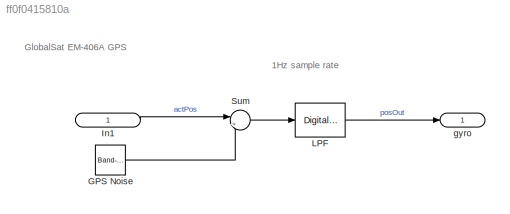
MODEL slx_ff0f0415810a
KIND model
CONFIG AbsTol = auto
CONFIG FixedStep = auto
CONFIG MaxStep = auto
CONFIG MinStep = auto
CONFIG RelTol = 1e-3
CONFIG SampleTimeConstraint = Unconstrained
CONFIG Solver = ode45
CONFIG SolverMode = Auto
CONFIG SolverName = ode45
CONFIG StartTime = 0.0
CONFIG StopTime = 100
BLOCK [Reference] GPS Noise  REF=simulink/Sources/Band-Limited
White Noise
  Cov = [gpsNoise]
  Ports = [0, 1]
  SourceBlock = simulink/Sources/Band-Limited\nWhite Noise
  SourceType = Band-Limited White Noise.
  Ts = 1
  VectorParams1D = on
  seed = 1001
BLOCK [Inport] In1
  IconDisplay = Signal name
  SignalType = real
BLOCK [Reference] LPF   REF=dsparch4/Digital
Filter Design
  Ports = [1, 1]
  SourceBlock = dsparch4/Digital\nFilter Design
  SourceType = Digital Filter Design
  UserDataPersistent = on
  mwdsp_browser_bugfix_var = off
BLOCK [Sum] Sum
  IconShape = round
  InputSameDT = off
  Inputs = |++
  OutDataTypeStr = Inherit: Inherit via internal rule
  Ports = [2, 1]
  SaturateOnIntegerOverflow = off
BLOCK [Outport] gyro
  IconDisplay = Signal name
  OutDataTypeStr = double
  PortDimensions = 1
  SignalType = real
  VarSizeSig = No
ANNOTATION (root): 1Hz sample rate
ANNOTATION (root): GlobalSat EM-406A GPS
LINE GPS Noise:1 -> Sum:2
LINE In1:1 -> Sum:1
LINE LPF :1 -> gyro:1
LINE Sum:1 -> LPF :1
